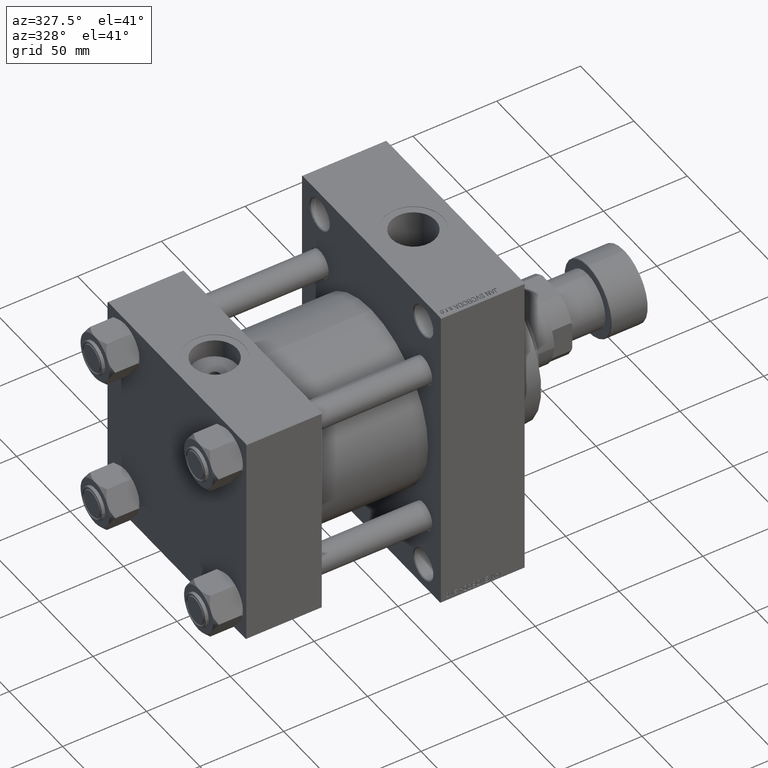
[diagram: clean part render]
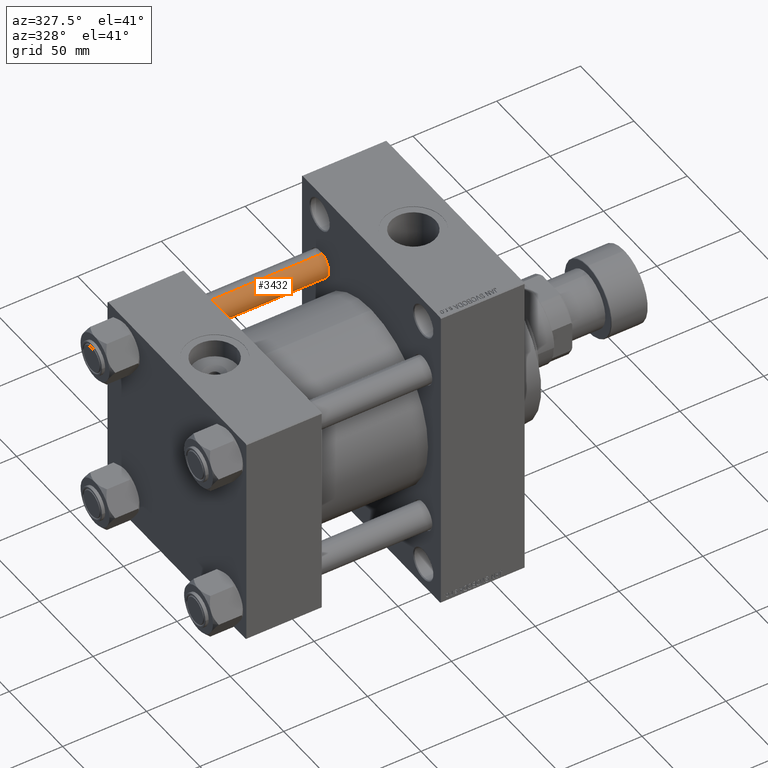
[diagram: same view with one face highlighted and labeled with its STEP entity id]
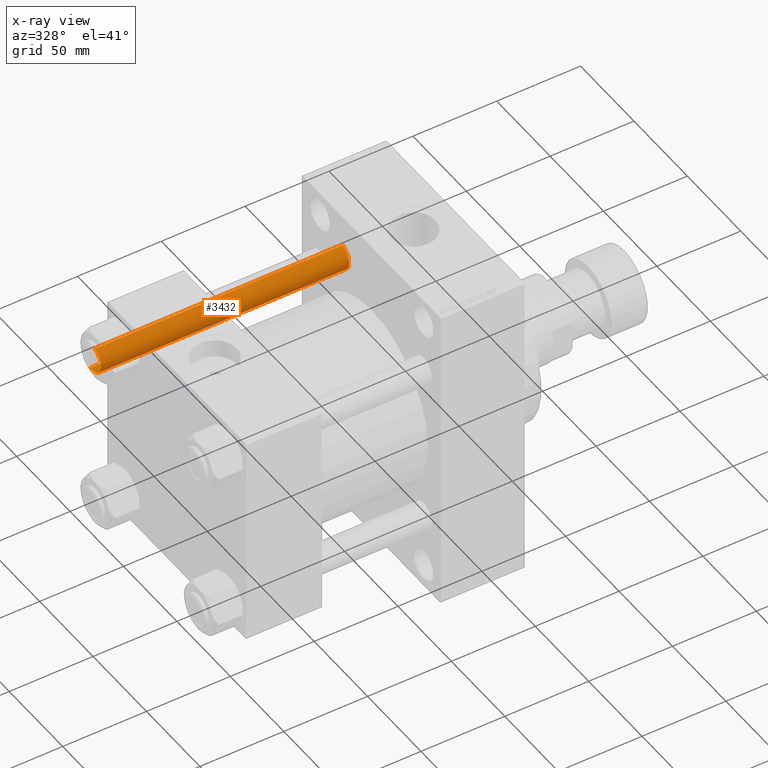
[diagram: x-ray of the same camera — body ghosted, the highlighted face saturated]
A machine part, auxiliary view. The second image highlights one B-rep face of the part: STEP entity #3432.
The next image is the same camera in x-ray: the body ghosted, the highlighted face saturated — about 0% of this face is hidden behind the body in this view.
In plain terms, the highlighted cylindrical surface (edge-blend (fillet) strip) has radius 8 mm, axis along (-1, -0, 0).
Its self-contained STEP definition (entity closure, byte-faithful):
#1400 = CARTESIAN_POINT ( 'NONE',  ( 0.000000000000000000, 0.000000000000000000, 0.5000000000000281997 ) ) ;
#1671 = DIRECTION ( 'NONE',  ( -0.000000000000000000, -0.000000000000000000, -1.000000000000000000 ) ) ;
#1957 = EDGE_CURVE ( 'NONE', #2639, #17238, #20445, .T. ) ;
#2639 = VERTEX_POINT ( 'NONE', #38212 ) ;
#3432 = ADVANCED_FACE ( 'NONE', ( #28670 ), #10665, .T. ) ;
#5047 = DIRECTION ( 'NONE',  ( -0.000000000000000000, -0.000000000000000000, 1.000000000000000000 ) ) ;
#8829 = AXIS2_PLACEMENT_3D ( 'NONE', #25263, #17489, #25502 ) ;
#9690 = LINE ( 'NONE', #24520, #28460 ) ;
#10665 = CYLINDRICAL_SURFACE ( 'NONE', #8829, 8.000000000000000000 ) ;
#11344 = DIRECTION ( 'NONE',  ( 1.000000000000000000, 0.000000000000000000, 0.000000000000000000 ) ) ;
#12271 = VERTEX_POINT ( 'NONE', #46147 ) ;
#12868 = DIRECTION ( 'NONE',  ( -0.000000000000000000, -0.000000000000000000, -1.000000000000000000 ) ) ;
#14306 = EDGE_CURVE ( 'NONE', #17238, #33742, #9690, .T. ) ;
#15232 = CARTESIAN_POINT ( 'NONE',  ( 0.000000000000000000, 0.000000000000000000, 148.5000000000000000 ) ) ;
#16070 = CARTESIAN_POINT ( 'NONE',  ( -8.000000000000000000, 0.000000000000000000, 0.5000000000000281997 ) ) ;
#17238 = VERTEX_POINT ( 'NONE', #44758 ) ;
#17489 = DIRECTION ( 'NONE',  ( -0.000000000000000000, -0.000000000000000000, -1.000000000000000000 ) ) ;
#20445 = CIRCLE ( 'NONE', #23543, 8.000000000000000000 ) ;
#23543 = AXIS2_PLACEMENT_3D ( 'NONE', #15232, #40784, #11344 ) ;
#24520 = CARTESIAN_POINT ( 'NONE',  ( -8.000000000000000000, 0.000000000000000000, 149.0000000000000000 ) ) ;
#24666 = CIRCLE ( 'NONE', #37094, 8.000000000000000000 ) ;
#25263 = CARTESIAN_POINT ( 'NONE',  ( 0.000000000000000000, 0.000000000000000000, 149.0000000000000000 ) ) ;
#25502 = DIRECTION ( 'NONE',  ( -1.000000000000000000, 0.000000000000000000, 0.000000000000000000 ) ) ;
#26148 = ORIENTED_EDGE ( 'NONE', *, *, #27333, .T. ) ;
#27333 = EDGE_CURVE ( 'NONE', #33742, #12271, #24666, .T. ) ;
#28404 = EDGE_CURVE ( 'NONE', #2639, #12271, #31599, .T. ) ;
#28460 = VECTOR ( 'NONE', #1671, 1000.000000000000000 ) ;
#28589 = VECTOR ( 'NONE', #12868, 1000.000000000000000 ) ;
#28670 = FACE_OUTER_BOUND ( 'NONE', #42650, .T. ) ;
#30708 = ORIENTED_EDGE ( 'NONE', *, *, #1957, .T. ) ;
#30955 = ORIENTED_EDGE ( 'NONE', *, *, #28404, .F. ) ;
#31599 = LINE ( 'NONE', #35727, #28589 ) ;
#33742 = VERTEX_POINT ( 'NONE', #16070 ) ;
#35727 = CARTESIAN_POINT ( 'NONE',  ( 8.000000000000000000, 9.797174393178825657E-16, 149.0000000000000000 ) ) ;
#37094 = AXIS2_PLACEMENT_3D ( 'NONE', #1400, #5047, #38601 ) ;
#38212 = CARTESIAN_POINT ( 'NONE',  ( 8.000000000000000000, 9.797174393178825657E-16, 148.5000000000000000 ) ) ;
#38601 = DIRECTION ( 'NONE',  ( 1.000000000000000000, 0.000000000000000000, 0.000000000000000000 ) ) ;
#40784 = DIRECTION ( 'NONE',  ( 0.000000000000000000, 0.000000000000000000, -1.000000000000000000 ) ) ;
#42650 = EDGE_LOOP ( 'NONE', ( #30955, #30708, #46348, #26148 ) ) ;
#44758 = CARTESIAN_POINT ( 'NONE',  ( -8.000000000000000000, 0.000000000000000000, 148.5000000000000000 ) ) ;
#46147 = CARTESIAN_POINT ( 'NONE',  ( 8.000000000000000000, 9.797174393178825657E-16, 0.5000000000000281997 ) ) ;
#46348 = ORIENTED_EDGE ( 'NONE', *, *, #14306, .T. ) ;